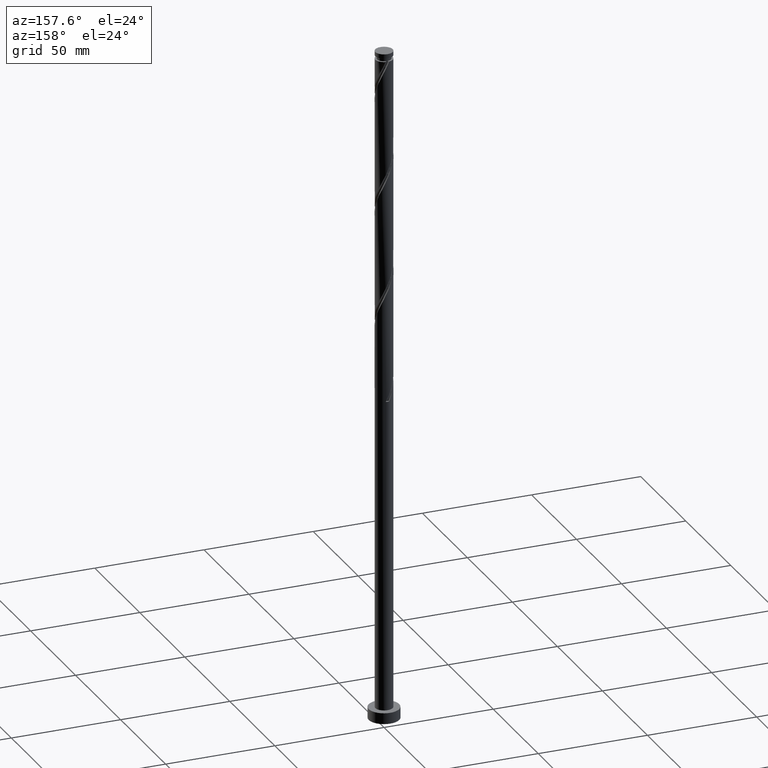
[diagram: clean part render]
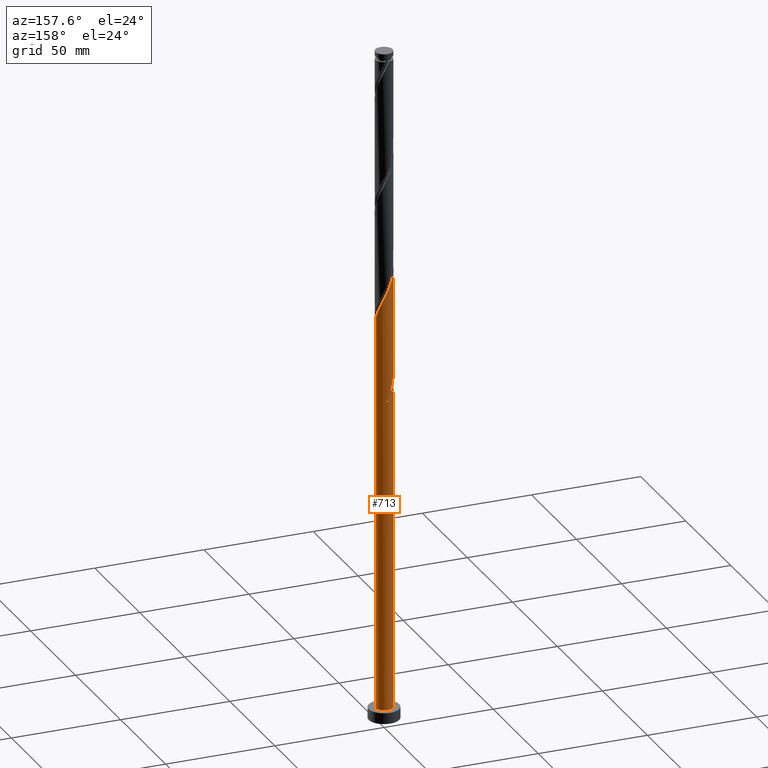
[diagram: same view with one face highlighted and labeled with its STEP entity id]
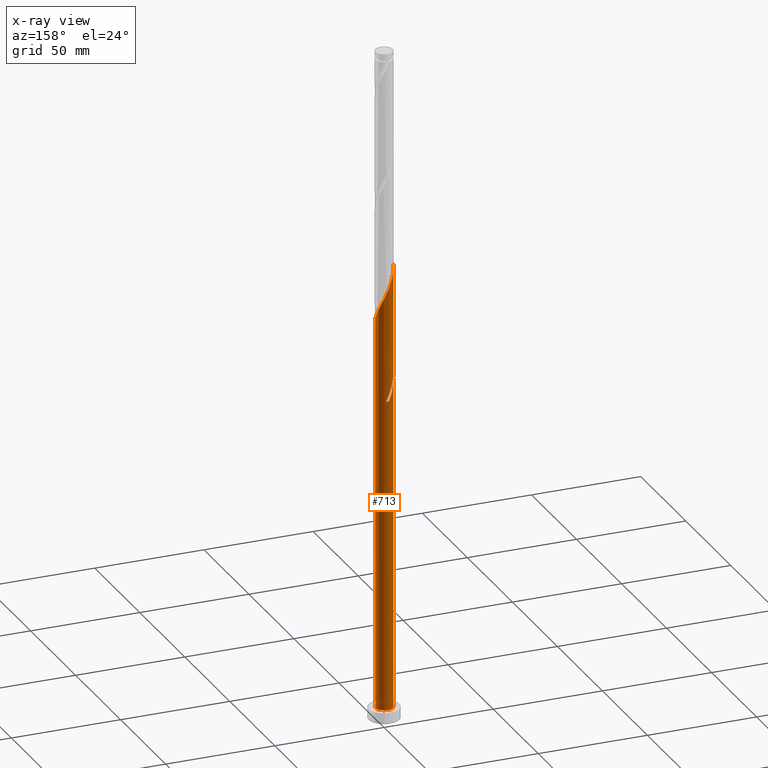
[diagram: x-ray of the same camera — body ghosted, the highlighted face saturated]
A machine part, auxiliary view. The second image highlights one B-rep face of the part: STEP entity #713.
The next image is the same camera in x-ray: the body ghosted, the highlighted face saturated — about 0% of this face is hidden behind the body in this view.
In plain terms, the highlighted cylindrical surface (edge-blend (fillet) strip) has radius 4 mm, axis along (-0, -0, -1).
Its self-contained STEP definition (entity closure, byte-faithful):
#14 = CARTESIAN_POINT ( 'NONE',  ( 0.000000000000000000, 0.000000000000000000, 147.9484676459098864 ) ) ;
#36 = EDGE_CURVE ( 'NONE', #254, #1594, #651, .T. ) ;
#62 = ORIENTED_EDGE ( 'NONE', *, *, #1817, .F. ) ;
#75 = CARTESIAN_POINT ( 'NONE',  ( -4.000000000000000000, 0.000000000000000000, 5.000000000000000000 ) ) ;
#89 = AXIS2_PLACEMENT_3D ( 'NONE', #1601, #1723, #1178 ) ;
#99 = CARTESIAN_POINT ( 'NONE',  ( -1.821750020894125299, 3.561071027285505508, 153.5734676459098864 ) ) ;
#108 = CARTESIAN_POINT ( 'NONE',  ( -2.913989227796199177, 2.777010954688412081, 156.3859676459098864 ) ) ;
#115 = CARTESIAN_POINT ( 'NONE',  ( 3.186430866508033866, 2.417986421170497557, 191.0734676459099433 ) ) ;
#120 = CARTESIAN_POINT ( 'NONE',  ( -3.766332957902740475, 1.420513679056761847, 156.3859676459098580 ) ) ;
#125 = CARTESIAN_POINT ( 'NONE',  ( -0.3543120252768623413, 4.009686527761988195, 199.5109676459098580 ) ) ;
#172 = EDGE_CURVE ( 'NONE', #1858, #399, #245, .T. ) ;
#177 = EDGE_CURVE ( 'NONE', #1858, #1137, #1113, .T. ) ;
#184 = CIRCLE ( 'NONE', #558, 4.000000000000000000 ) ;
#238 = CARTESIAN_POINT ( 'NONE',  ( -4.000000000000005329, -1.350782503698106338E-15, 211.8989505680038690 ) ) ;
#245 = LINE ( 'NONE', #1870, #1467 ) ;
#254 = VERTEX_POINT ( 'NONE', #1902 ) ;
#263 = CARTESIAN_POINT ( 'NONE',  ( 2.222986362731496079, 3.355809096668280311, 193.8859676459098296 ) ) ;
#265 = CARTESIAN_POINT ( 'NONE',  ( 3.644592988728941663, 1.648314880873156696, 189.1984676459099148 ) ) ;
#268 = CARTESIAN_POINT ( 'NONE',  ( -3.066410025678348195, 2.568487795263850959, 153.5734676459098864 ) ) ;
#273 = CARTESIAN_POINT ( 'NONE',  ( -2.777010954688416078, 2.913989227796204506, 205.1359676459098580 ) ) ;
#296 = CARTESIAN_POINT ( 'NONE',  ( -3.987997157791141500, 0.5468105079655636303, 210.7609676459098580 ) ) ;
#306 = CARTESIAN_POINT ( 'NONE',  ( 2.568487795263851403, 3.066410025678347750, 192.9484676459099148 ) ) ;
#361 = VERTEX_POINT ( 'NONE', #1432 ) ;
#370 = CARTESIAN_POINT ( 'NONE',  ( -3.561071027285511725, 1.821750020894129296, 155.4484676459098864 ) ) ;
#382 = CARTESIAN_POINT ( 'NONE',  ( -1.237667874093734799, 3.830313472238020545, 148.8859676459098864 ) ) ;
#388 = DIRECTION ( 'NONE',  ( -1.000000000000000000, 0.000000000000000000, 0.000000000000000000 ) ) ;
#391 = DIRECTION ( 'NONE',  ( 1.000000000000000000, 0.000000000000000000, 0.000000000000000000 ) ) ;
#399 = VERTEX_POINT ( 'NONE', #820 ) ;
#411 = CARTESIAN_POINT ( 'NONE',  ( 0.9836620935111638486, 3.877165057846942986, 196.6984676459098864 ) ) ;
#413 = CARTESIAN_POINT ( 'NONE',  ( 3.920000000000005258, 0.7959899496852984591, 187.3234676459099717 ) ) ;
#421 = CARTESIAN_POINT ( 'NONE',  ( -4.000000000000005329, 0.04813158866556892929, 211.7985878797787223 ) ) ;
#427 = CARTESIAN_POINT ( 'NONE',  ( 0.3543120252768632295, 4.009686527761982866, 148.8859676459099148 ) ) ;
#429 = ORIENTED_EDGE ( 'NONE', *, *, #1546, .T. ) ;
#434 = CARTESIAN_POINT ( 'NONE',  ( -3.355809096668280311, 2.222986362731495635, 207.0109676459098580 ) ) ;
#447 = CARTESIAN_POINT ( 'NONE',  ( -3.998841842776566846, 0.09624924134435031142, 211.6984676459099433 ) ) ;
#533 = LINE ( 'NONE', #848, #949 ) ;
#539 = DIRECTION ( 'NONE',  ( -0.000000000000000000, -0.000000000000000000, -1.000000000000000000 ) ) ;
#544 = CARTESIAN_POINT ( 'NONE',  ( -2.417986421170498446, 3.186430866508032533, 151.6984676459098864 ) ) ;
#548 = CARTESIAN_POINT ( 'NONE',  ( -4.000000000000000000, -8.768891943896607661E-15, 162.7479847238159891 ) ) ;
#558 = AXIS2_PLACEMENT_3D ( 'NONE', #1414, #1258, #391 ) ;
#559 = FACE_OUTER_BOUND ( 'NONE', #1410, .T. ) ;
#564 = CARTESIAN_POINT ( 'NONE',  ( -4.000000000000002665, 0.4020151261036707946, 161.9097136448523599 ) ) ;
#575 = CARTESIAN_POINT ( 'NONE',  ( -3.987997157791141500, 0.5468105079655636303, 158.2609676459098580 ) ) ;
#592 = CARTESIAN_POINT ( 'NONE',  ( -1.648314880873157140, 3.644592988728941663, 202.3234676459099148 ) ) ;
#651 = CIRCLE ( 'NONE', #902, 4.000000000000000000 ) ;
#686 = CARTESIAN_POINT ( 'NONE',  ( -1.648314880873157140, 3.644592988728941663, 149.8234676459098864 ) ) ;
#695 = CARTESIAN_POINT ( 'NONE',  ( 0.7959899496852993472, 3.919999999999999485, 147.9484676459099148 ) ) ;
#713 = ADVANCED_FACE ( 'NONE', ( #559 ), #1144, .T. ) ;
#717 = CARTESIAN_POINT ( 'NONE',  ( -3.830313472238015660, 1.237667874093733689, 160.1359676459099433 ) ) ;
#820 = CARTESIAN_POINT ( 'NONE',  ( 4.000000000000000000, 4.898587196589412829E-16, 5.000000000000000000 ) ) ;
#838 = CARTESIAN_POINT ( 'NONE',  ( -3.877165057846942986, 0.9836620935111631825, 157.3234676459099433 ) ) ;
#848 = CARTESIAN_POINT ( 'NONE',  ( -4.000000000000000000, 0.000000000000000000, 309.0000000000000000 ) ) ;
#856 = CARTESIAN_POINT ( 'NONE',  ( 4.000000000000005329, 8.507690907269842176E-16, 185.6489505680038405 ) ) ;
#858 = CARTESIAN_POINT ( 'NONE',  ( -3.644592988728935001, 1.648314880873155364, 159.1984676459099433 ) ) ;
#879 = CARTESIAN_POINT ( 'NONE',  ( -3.877165057846942986, 0.9836620935111631825, 209.8234676459099148 ) ) ;
#893 = VERTEX_POINT ( 'NONE', #548 ) ;
#902 = AXIS2_PLACEMENT_3D ( 'NONE', #14, #1310, #388 ) ;
#949 = VECTOR ( 'NONE', #1008, 1000.000000000000000 ) ;
#968 = ORIENTED_EDGE ( 'NONE', *, *, #36, .T. ) ;
#972 = CARTESIAN_POINT ( 'NONE',  ( 0.7959899496852993472, 3.919999999999999041, 147.9484676459098864 ) ) ;
#977 = CARTESIAN_POINT ( 'NONE',  ( -2.777010954688416078, 2.913989227796204506, 152.6359676459098011 ) ) ;
#998 = CARTESIAN_POINT ( 'NONE',  ( -1.420513679056759404, 3.766332957902735146, 152.6359676459099148 ) ) ;
#1002 = CARTESIAN_POINT ( 'NONE',  ( -0.7959899496852981260, 3.920000000000005258, 200.4484676459099148 ) ) ;
#1004 = CARTESIAN_POINT ( 'NONE',  ( 3.830313472238020545, 1.237667874093734355, 188.2609676459098580 ) ) ;
#1008 = DIRECTION ( 'NONE',  ( -0.000000000000000000, -0.000000000000000000, -1.000000000000000000 ) ) ;
#1041 = DIRECTION ( 'NONE',  ( -0.000000000000000000, -0.000000000000000000, -1.000000000000000000 ) ) ;
#1113 =( BOUNDED_CURVE ( )  B_SPLINE_CURVE ( 2, ( #1747, #1592, #413, #1004, #265, #1456, #115, #1645, #306, #263, #1755, #1466, #411, #1481, #1611, #125, #1002, #1792, #592, #1318, #1331, #273, #1177, #434, #1625, #1600, #879, #296, #447, #421, #1188 ),
 .UNSPECIFIED., .F., .T. ) 
 B_SPLINE_CURVE_WITH_KNOTS ( ( 3, 2, 2, 2, 2, 2, 2, 2, 2, 2, 2, 2, 2, 2, 2, 3 ),
 ( 0.1795303401299219170, 0.1875000000000000000, 0.1964285714285713969, 0.2053571428571429047, 0.2142857142857143016, 0.2232142857142856984, 0.2321428571428570953, 0.2410714285714286031, 0.2500000000000000000, 0.2589285714285713969, 0.2678571428571429047, 0.2767857142857143016, 0.2857142857142856984, 0.2946428571428570953, 0.3035714285714286031, 0.3045303401299219170 ),
 .UNSPECIFIED. ) 
 CURVE ( )  GEOMETRIC_REPRESENTATION_ITEM ( )  RATIONAL_B_SPLINE_CURVE ( ( 0.9079949616362108511, 0.9039886423360738998, 0.9090909090909405910, 0.9033747362666157965, 0.9090909090909405910, 0.9033747362666157965, 0.9090909090909405910, 0.9033747362666157965, 0.9090909090909405910, 0.9033747362666157965, 0.9090909090909405910, 0.9033747362666157965, 0.9090909090909405910, 0.9033747362666157965, 0.9090909090909405910, 0.9033747362666157965, 0.9090909090909405910, 0.9033747362666157965, 0.9090909090909405910, 0.9033747362666157965, 0.9090909090909405910, 0.9033747362666157965, 0.9090909090909405910, 0.9033747362666157965, 0.9090909090909405910, 0.9033747362666157965, 0.9090909090909405910, 0.9033747362666157965, 0.9090909090909405910, 0.9084770030214824876, 0.9079949616362108511 ) ) 
 REPRESENTATION_ITEM ( '' )  );
#1123 = VERTEX_POINT ( 'NONE', #75 ) ;
#1133 = ORIENTED_EDGE ( 'NONE', *, *, #172, .T. ) ;
#1137 = VERTEX_POINT ( 'NONE', #238 ) ;
#1144 = CYLINDRICAL_SURFACE ( 'NONE', #89, 4.000000000000000000 ) ;
#1148 = ORIENTED_EDGE ( 'NONE', *, *, #1697, .F. ) ;
#1150 = VECTOR ( 'NONE', #1041, 1000.000000000000000 ) ;
#1161 = CARTESIAN_POINT ( 'NONE',  ( -2.568487795263845186, 3.066410025678343754, 155.4484676459099148 ) ) ;
#1177 = CARTESIAN_POINT ( 'NONE',  ( -3.066410025678348195, 2.568487795263850959, 206.0734676459099148 ) ) ;
#1178 = DIRECTION ( 'NONE',  ( -1.000000000000000000, 0.000000000000000000, 0.000000000000000000 ) ) ;
#1183 = ORIENTED_EDGE ( 'NONE', *, *, #1405, .F. ) ;
#1188 = CARTESIAN_POINT ( 'NONE',  ( -4.000000000000005329, -1.350782503698106338E-15, 211.8989505680038690 ) ) ;
#1258 = DIRECTION ( 'NONE',  ( 0.000000000000000000, 0.000000000000000000, 1.000000000000000000 ) ) ;
#1293 = CARTESIAN_POINT ( 'NONE',  ( -4.000000000000000000, -8.768891943896607661E-15, 162.7479847238159891 ) ) ;
#1310 = DIRECTION ( 'NONE',  ( 0.000000000000000000, -0.000000000000000000, -1.000000000000000000 ) ) ;
#1312 = CARTESIAN_POINT ( 'NONE',  ( -3.458872505219855675, 2.058961887652577261, 158.2609676459098580 ) ) ;
#1313 = CARTESIAN_POINT ( 'NONE',  ( -4.000000000000007105, 0.04813158866554802240, 159.2985878797788359 ) ) ;
#1318 = CARTESIAN_POINT ( 'NONE',  ( -2.058961887652579037, 3.458872505219860560, 203.2609676459099433 ) ) ;
#1320 =( BOUNDED_CURVE ( )  B_SPLINE_CURVE ( 2, ( #1440, #382, #686, #1606, #544, #977, #268, #1461, #370, #120, #838, #575, #1429, #1313, #1585 ),
 .UNSPECIFIED., .F., .T. ) 
 B_SPLINE_CURVE_WITH_KNOTS ( ( 3, 2, 2, 2, 2, 2, 2, 3 ),
 ( 0.000000000000000000, 0.008928571428571396851, 0.01785714285714290472, 0.02678571428571430157, 0.03571428571428569843, 0.04464285714285709528, 0.05357142857142860315, 0.05453034012992233337 ),
 .UNSPECIFIED. ) 
 CURVE ( )  GEOMETRIC_REPRESENTATION_ITEM ( )  RATIONAL_B_SPLINE_CURVE ( ( 0.9090909090909405910, 0.9033747362666157965, 0.9090909090909405910, 0.9033747362666157965, 0.9090909090909405910, 0.9033747362666157965, 0.9090909090909405910, 0.9033747362666157965, 0.9090909090909405910, 0.9033747362666157965, 0.9090909090909405910, 0.9033747362666157965, 0.9090909090909405910, 0.9084770030214822656, 0.9079949616362105180 ) ) 
 REPRESENTATION_ITEM ( '' )  );
#1323 = CARTESIAN_POINT ( 'NONE',  ( -3.186430866508027204, 2.417986421170494449, 157.3234676459098864 ) ) ;
#1331 = CARTESIAN_POINT ( 'NONE',  ( -2.417986421170498446, 3.186430866508032533, 204.1984676459099148 ) ) ;
#1405 = EDGE_CURVE ( 'NONE', #893, #1594, #1856, .T. ) ;
#1410 = EDGE_LOOP ( 'NONE', ( #1855, #1133, #429, #1148, #1631, #968, #1183, #62 ) ) ;
#1414 = CARTESIAN_POINT ( 'NONE',  ( 0.000000000000000000, 0.000000000000000000, 5.000000000000000000 ) ) ;
#1429 = CARTESIAN_POINT ( 'NONE',  ( -3.998841842776566846, 0.09624924134435031142, 159.1984676459099433 ) ) ;
#1432 = CARTESIAN_POINT ( 'NONE',  ( -4.000000000000005329, -1.350782503698106338E-15, 159.3989505680038974 ) ) ;
#1440 = CARTESIAN_POINT ( 'NONE',  ( -0.7959899496852980150, 3.920000000000005258, 147.9484676459098864 ) ) ;
#1456 = CARTESIAN_POINT ( 'NONE',  ( 3.458872505219860560, 2.058961887652578593, 190.1359676459098296 ) ) ;
#1461 = CARTESIAN_POINT ( 'NONE',  ( -3.355809096668280311, 2.222986362731495635, 154.5109676459098864 ) ) ;
#1466 = CARTESIAN_POINT ( 'NONE',  ( 1.420513679056762957, 3.766332957902740475, 195.7609676459099148 ) ) ;
#1467 = VECTOR ( 'NONE', #539, 1000.000000000000000 ) ;
#1481 = CARTESIAN_POINT ( 'NONE',  ( 0.5468105079655644074, 3.987997157791141500, 197.6359676459098580 ) ) ;
#1546 = EDGE_CURVE ( 'NONE', #399, #1123, #184, .T. ) ;
#1585 = CARTESIAN_POINT ( 'NONE',  ( -4.000000000000005329, -1.350782503698106338E-15, 159.3989505680038974 ) ) ;
#1592 = CARTESIAN_POINT ( 'NONE',  ( 4.000000000000005329, 0.4020151261036781776, 186.4872216469674413 ) ) ;
#1594 = VERTEX_POINT ( 'NONE', #972 ) ;
#1600 = CARTESIAN_POINT ( 'NONE',  ( -3.766332957902740475, 1.420513679056761847, 208.8859676459098864 ) ) ;
#1601 = CARTESIAN_POINT ( 'NONE',  ( 0.000000000000000000, 0.000000000000000000, 309.0000000000000000 ) ) ;
#1606 = CARTESIAN_POINT ( 'NONE',  ( -2.058961887652579037, 3.458872505219860560, 150.7609676459098864 ) ) ;
#1611 = CARTESIAN_POINT ( 'NONE',  ( 0.09624924134435117185, 3.998841842776566846, 198.5734676459098864 ) ) ;
#1616 = EDGE_CURVE ( 'NONE', #254, #361, #1320, .T. ) ;
#1625 = CARTESIAN_POINT ( 'NONE',  ( -3.561071027285511725, 1.821750020894129296, 207.9484676459099433 ) ) ;
#1631 = ORIENTED_EDGE ( 'NONE', *, *, #1616, .F. ) ;
#1645 = CARTESIAN_POINT ( 'NONE',  ( 2.913989227796204506, 2.777010954688415634, 192.0109676459098580 ) ) ;
#1697 = EDGE_CURVE ( 'NONE', #361, #1123, #533, .T. ) ;
#1723 = DIRECTION ( 'NONE',  ( -0.000000000000000000, -0.000000000000000000, -1.000000000000000000 ) ) ;
#1747 = CARTESIAN_POINT ( 'NONE',  ( 4.000000000000005329, 8.507690907269842176E-16, 185.6489505680038405 ) ) ;
#1750 = CARTESIAN_POINT ( 'NONE',  ( -0.9836620935111604069, 3.877165057846936325, 151.6984676459098864 ) ) ;
#1755 = CARTESIAN_POINT ( 'NONE',  ( 1.821750020894129740, 3.561071027285511281, 194.8234676459098864 ) ) ;
#1760 = LINE ( 'NONE', #1785, #1150 ) ;
#1761 = CARTESIAN_POINT ( 'NONE',  ( -0.5468105079655619649, 3.987997157791136171, 150.7609676459098864 ) ) ;
#1773 = CARTESIAN_POINT ( 'NONE',  ( -3.919999999999999485, 0.7959899496852985701, 161.0734676459098580 ) ) ;
#1785 = CARTESIAN_POINT ( 'NONE',  ( -4.000000000000000000, 0.000000000000000000, 309.0000000000000000 ) ) ;
#1792 = CARTESIAN_POINT ( 'NONE',  ( -1.237667874093734799, 3.830313472238020545, 201.3859676459098296 ) ) ;
#1817 = EDGE_CURVE ( 'NONE', #1137, #893, #1760, .T. ) ;
#1855 = ORIENTED_EDGE ( 'NONE', *, *, #177, .F. ) ;
#1856 =( BOUNDED_CURVE ( )  B_SPLINE_CURVE ( 2, ( #1293, #564, #1773, #717, #858, #1312, #1323, #108, #1161, #1917, #99, #998, #1750, #1761, #1907, #427, #695 ),
 .UNSPECIFIED., .F., .T. ) 
 B_SPLINE_CURVE_WITH_KNOTS ( ( 3, 2, 2, 2, 2, 2, 2, 2, 3 ),
 ( 0.9295303401299217505, 0.9375000000000000000, 0.9464285714285713969, 0.9553571428571429047, 0.9642857142857143016, 0.9732142857142856984, 0.9821428571428570953, 0.9910714285714286031, 1.000000000000000000 ),
 .UNSPECIFIED. ) 
 CURVE ( )  GEOMETRIC_REPRESENTATION_ITEM ( )  RATIONAL_B_SPLINE_CURVE ( ( 0.9079949616362048559, 0.9039886423360675716, 0.9090909090909344847, 0.9033747362666094682, 0.9090909090909344847, 0.9033747362666094682, 0.9090909090909344847, 0.9033747362666094682, 0.9090909090909344847, 0.9033747362666094682, 0.9090909090909344847, 0.9033747362666094682, 0.9090909090909344847, 0.9033747362666094682, 0.9090909090909344847, 0.9033747362666094682, 0.9090909090909344847 ) ) 
 REPRESENTATION_ITEM ( '' )  );
#1858 = VERTEX_POINT ( 'NONE', #856 ) ;
#1870 = CARTESIAN_POINT ( 'NONE',  ( 4.000000000000000000, 4.898587196589412829E-16, 309.0000000000000000 ) ) ;
#1902 = CARTESIAN_POINT ( 'NONE',  ( -0.7959899496852980150, 3.920000000000005258, 147.9484676459098864 ) ) ;
#1907 = CARTESIAN_POINT ( 'NONE',  ( -0.09624924134434935385, 3.998841842776559741, 149.8234676459098580 ) ) ;
#1917 = CARTESIAN_POINT ( 'NONE',  ( -2.222986362731491639, 3.355809096668276759, 154.5109676459098864 ) ) ;